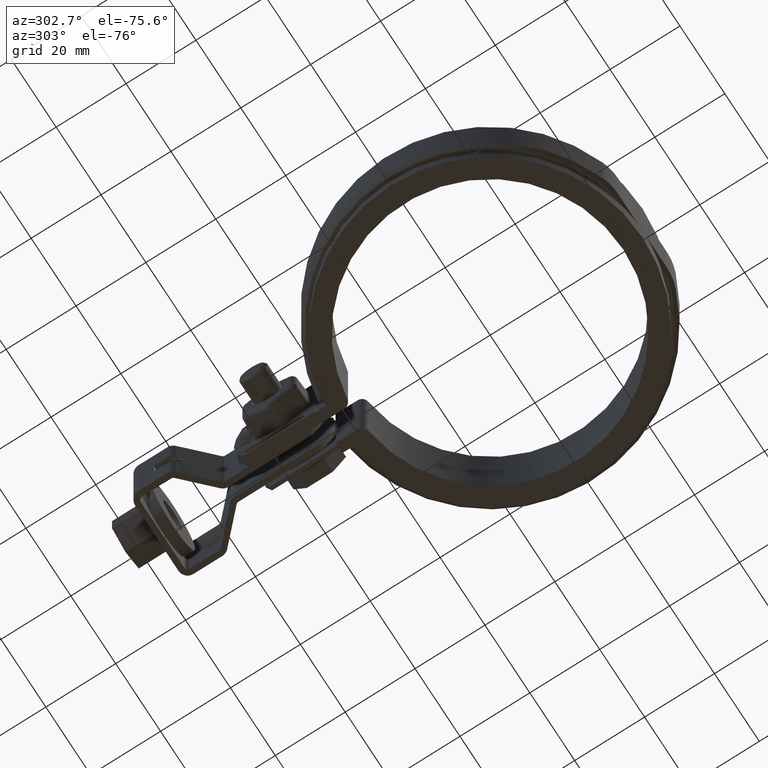
[diagram: clean part render]
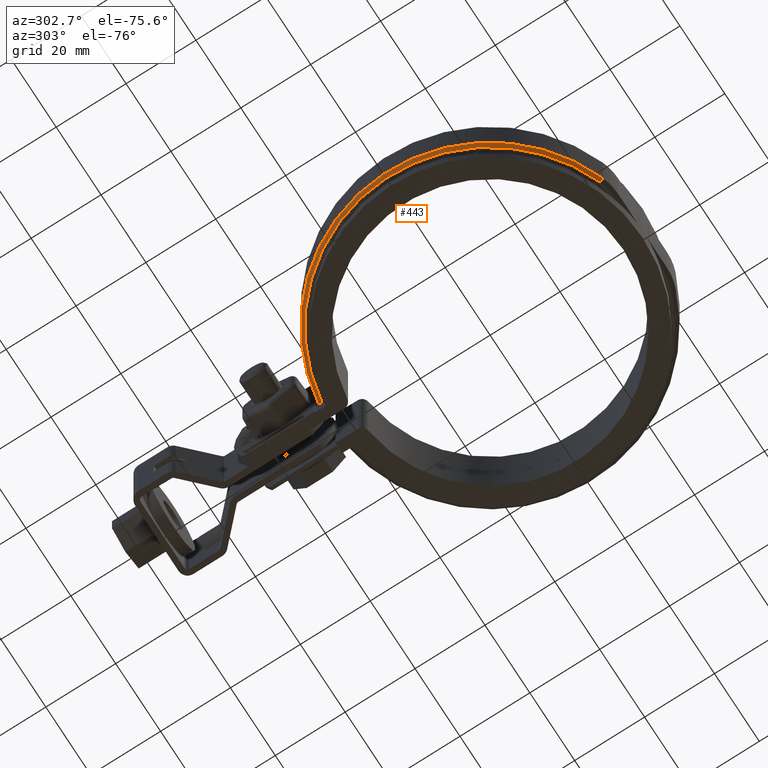
[diagram: same view with one face highlighted and labeled with its STEP entity id]
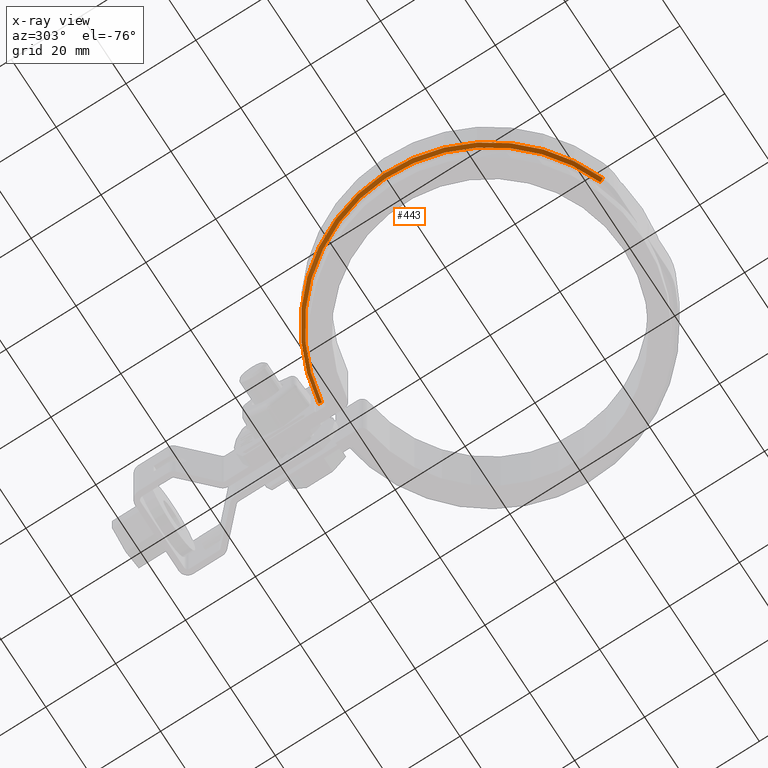
[diagram: x-ray of the same camera — body ghosted, the highlighted face saturated]
A machine part, auxiliary view. The second image highlights one B-rep face of the part: STEP entity #443.
The next image is the same camera in x-ray: the body ghosted, the highlighted face saturated — about 0% of this face is hidden behind the body in this view.
In plain terms, the highlighted conical surface has half-angle 45 deg.
Its self-contained STEP definition (entity closure, byte-faithful):
#443 = ADVANCED_FACE( '', ( #864 ), #865, .T. );
#864 = FACE_OUTER_BOUND( '', #2050, .T. );
#865 = CONICAL_SURFACE( '', #2051, 45.6500000000000, 0.785398163397450 );
#2050 = EDGE_LOOP( '', ( #4031, #4032, #4033, #4034 ) );
#2051 = AXIS2_PLACEMENT_3D( '', #4035, #4036, #4037 );
#4031 = ORIENTED_EDGE( '', *, *, #6404, .F. );
#4032 = ORIENTED_EDGE( '', *, *, #6405, .F. );
#4033 = ORIENTED_EDGE( '', *, *, #6406, .F. );
#4034 = ORIENTED_EDGE( '', *, *, #6407, .F. );
#4035 = CARTESIAN_POINT( '', ( -3.46944695195361E-015, 3.46944695195361E-014, -7.50000000000000 ) );
#4036 = DIRECTION( '', ( 0.000000000000000, 0.000000000000000, 1.00000000000000 ) );
#4037 = DIRECTION( '', ( 1.00000000000000, 0.000000000000000, 0.000000000000000 ) );
#6404 = EDGE_CURVE( '', #7511, #7512, #7513, .T. );
#6405 = EDGE_CURVE( '', #7514, #7511, #7515, .F. );
#6406 = EDGE_CURVE( '', #7441, #7514, #7516, .T. );
#6407 = EDGE_CURVE( '', #7512, #7441, #7517, .T. );
#7441 = VERTEX_POINT( '', #10638 );
#7511 = VERTEX_POINT( '', #10784 );
#7512 = VERTEX_POINT( '', #10785 );
#7513 = B_SPLINE_CURVE_WITH_KNOTS( '', 3, ( #10786, #10787, #10788, #10789 ), .UNSPECIFIED., .F., .F., ( 4, 4 ), ( 707.162967612240, 707.164401115346 ), .UNSPECIFIED. );
#7514 = VERTEX_POINT( '', #10790 );
#7515 = CIRCLE( '', #10791, 44.6500000000000 );
#7516 = LINE( '', #10792, #10793 );
#7517 = CIRCLE( '', #10794, 45.6500000000000 );
#10638 = CARTESIAN_POINT( '', ( -16.2200671388275, -42.6712071778140, -7.50000000000000 ) );
#10784 = CARTESIAN_POINT( '', ( -6.00000000000000, 44.2450279692532, -8.50000000000000 ) );
#10785 = CARTESIAN_POINT( '', ( -6.00000000000000, 45.2539777257205, -7.49999999999999 ) );
#10786 = CARTESIAN_POINT( '', ( -6.00000000000000, 44.2450279692903, -8.49999999996324 ) );
#10787 = CARTESIAN_POINT( '', ( -6.00000000000000, 44.5813780887610, -8.16670054994217 ) );
#10788 = CARTESIAN_POINT( '', ( -6.00000000000000, 44.9176939331902, -7.83336646783535 ) );
#10789 = CARTESIAN_POINT( '', ( -6.00000000000000, 45.2539777257486, -7.49999999997214 ) );
#10790 = CARTESIAN_POINT( '', ( -15.8647535103757, -41.7364600326264, -8.50000000000000 ) );
#10791 = AXIS2_PLACEMENT_3D( '', #12704, #12705, #12706 );
#10792 = CARTESIAN_POINT( '', ( -16.2200671388275, -42.6712071778140, -7.50000000000000 ) );
#10793 = VECTOR( '', #12707, 1000.00000000000 );
#10794 = AXIS2_PLACEMENT_3D( '', #12708, #12709, #12710 );
#12704 = CARTESIAN_POINT( '', ( -3.46944695195361E-015, 3.46944695195361E-014, -8.50000000000000 ) );
#12705 = DIRECTION( '', ( 0.000000000000000, 0.000000000000000, 1.00000000000000 ) );
#12706 = DIRECTION( '', ( 1.00000000000000, 0.000000000000000, 0.000000000000000 ) );
#12707 = DIRECTION( '', ( 0.251244676126307, 0.660966045056921, -0.707106781186547 ) );
#12708 = CARTESIAN_POINT( '', ( -3.46944695195361E-015, 3.46944695195361E-014, -7.49999999999999 ) );
#12709 = DIRECTION( '', ( 0.000000000000000, 0.000000000000000, 1.00000000000000 ) );
#12710 = DIRECTION( '', ( 1.00000000000000, 0.000000000000000, 0.000000000000000 ) );